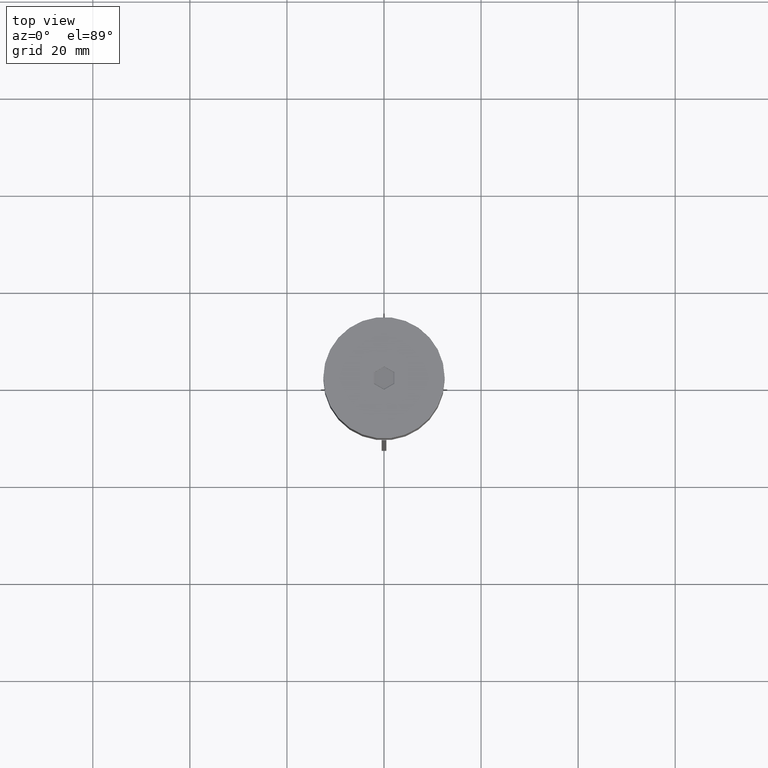
[diagram: clean part render]
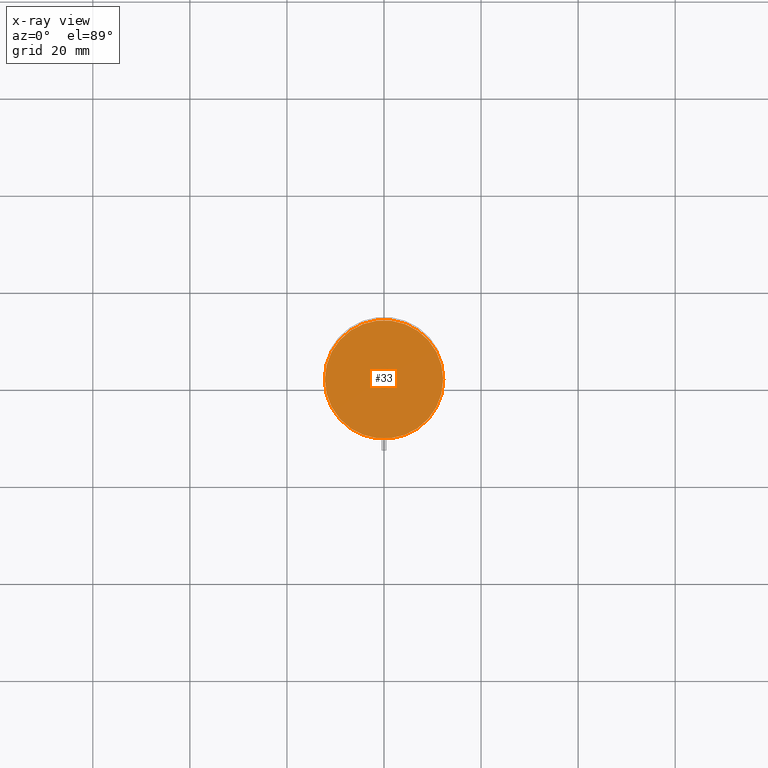
[diagram: x-ray — body ghosted, one internal face saturated and labeled with its STEP entity id]
A machine part, top view, then the same camera in x-ray: the body is ghosted and one INTERNAL B-rep face — a face not visible from any outside direction — is saturated and labeled: STEP entity #33.
In plain terms, the highlighted planar face has unit normal (0, 0, -1).
Its self-contained STEP definition (entity closure, byte-faithful):
#33 = ADVANCED_FACE ( 'NONE', ( #657 ), #853, .F. ) ;
#38 = VERTEX_POINT ( 'NONE', #1782 ) ;
#46 = CARTESIAN_POINT ( 'NONE',  ( 0.000000000000000000, 0.000000000000000000, -20.49999999999999645 ) ) ;
#49 = AXIS2_PLACEMENT_3D ( 'NONE', #46, #669, #1461 ) ;
#184 = EDGE_CURVE ( 'NONE', #38, #460, #1061, .T. ) ;
#335 = DIRECTION ( 'NONE',  ( -1.000000000000000000, 0.000000000000000000, 0.000000000000000000 ) ) ;
#344 = CARTESIAN_POINT ( 'NONE',  ( 0.000000000000000000, 0.000000000000000000, -20.49999999999999645 ) ) ;
#423 = ORIENTED_EDGE ( 'NONE', *, *, #1400, .T. ) ;
#460 = VERTEX_POINT ( 'NONE', #1630 ) ;
#657 = FACE_OUTER_BOUND ( 'NONE', #1108, .T. ) ;
#669 = DIRECTION ( 'NONE',  ( 0.000000000000000000, 0.000000000000000000, -1.000000000000000000 ) ) ;
#853 = PLANE ( 'NONE',  #49 ) ;
#854 = DIRECTION ( 'NONE',  ( -0.000000000000000000, -0.000000000000000000, 1.000000000000000000 ) ) ;
#1061 = CIRCLE ( 'NONE', #1502, 12.20000000000000639 ) ;
#1108 = EDGE_LOOP ( 'NONE', ( #423, #1407 ) ) ;
#1344 = CARTESIAN_POINT ( 'NONE',  ( 0.000000000000000000, 0.000000000000000000, -20.49999999999999645 ) ) ;
#1400 = EDGE_CURVE ( 'NONE', #460, #38, #1510, .T. ) ;
#1407 = ORIENTED_EDGE ( 'NONE', *, *, #184, .T. ) ;
#1461 = DIRECTION ( 'NONE',  ( -1.000000000000000000, 0.000000000000000000, -0.000000000000000000 ) ) ;
#1502 = AXIS2_PLACEMENT_3D ( 'NONE', #1344, #1992, #2013 ) ;
#1510 = CIRCLE ( 'NONE', #1541, 12.20000000000000639 ) ;
#1541 = AXIS2_PLACEMENT_3D ( 'NONE', #344, #854, #335 ) ;
#1630 = CARTESIAN_POINT ( 'NONE',  ( -12.20000000000000639, 0.000000000000000000, -20.49999999999999645 ) ) ;
#1782 = CARTESIAN_POINT ( 'NONE',  ( 12.20000000000000639, 1.512438796946981880E-15, -20.49999999999999645 ) ) ;
#1992 = DIRECTION ( 'NONE',  ( -0.000000000000000000, -0.000000000000000000, 1.000000000000000000 ) ) ;
#2013 = DIRECTION ( 'NONE',  ( -1.000000000000000000, 0.000000000000000000, 0.000000000000000000 ) ) ;